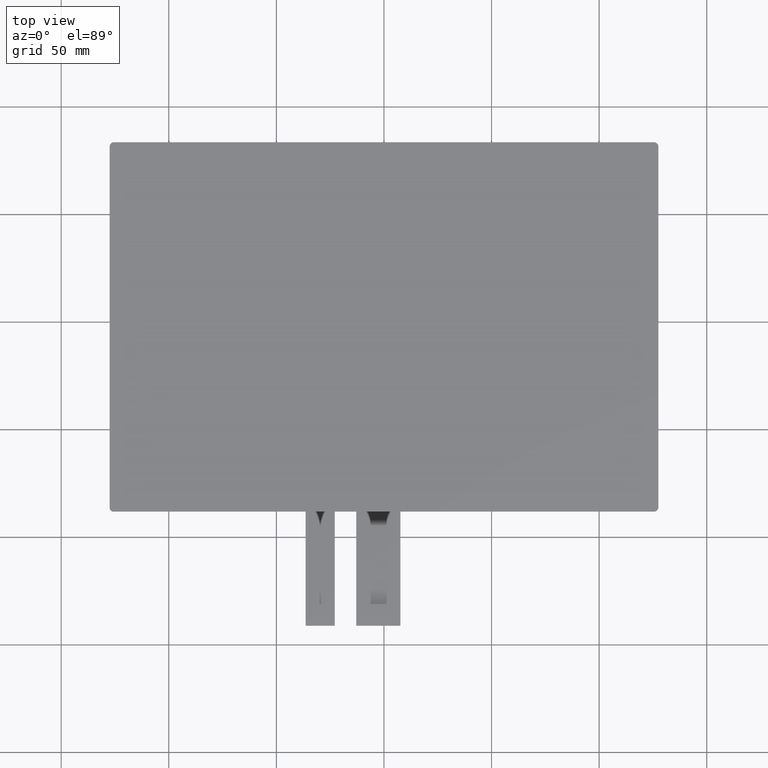
[diagram: clean part render]
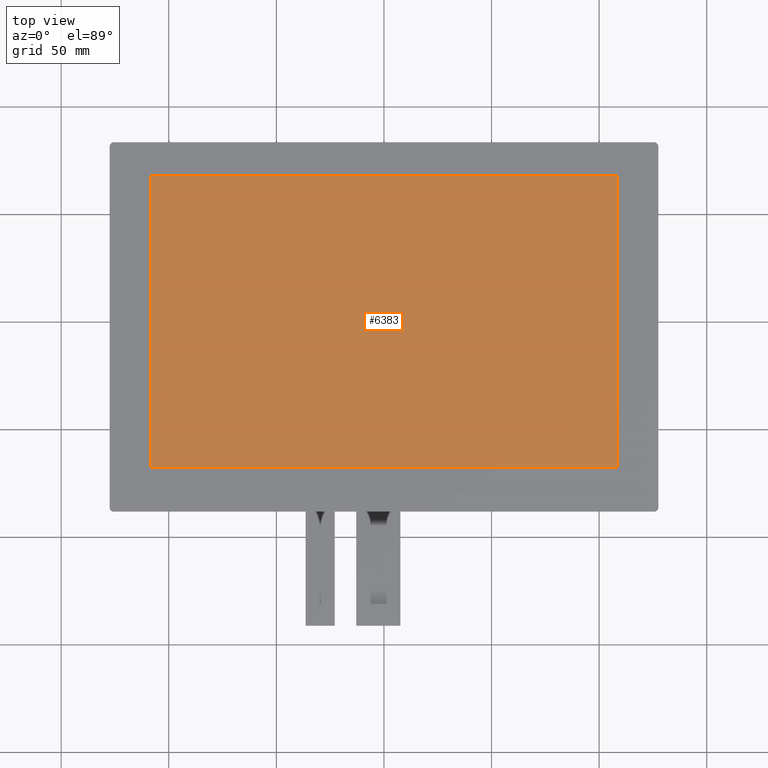
[diagram: same view with one face highlighted and labeled with its STEP entity id]
A machine part, top view. The second image highlights one B-rep face of the part: STEP entity #6383.
In plain terms, the highlighted planar face has unit normal (0, 0, 1).
Its self-contained STEP definition (entity closure, byte-faithful):
#339=FACE_OUTER_BOUND('',#649,.T.);
#649=EDGE_LOOP('',(#5715,#5716,#5717,#5718));
#667=LINE('',#8299,#1555);
#668=LINE('',#8301,#1556);
#669=LINE('',#8303,#1557);
#670=LINE('',#8304,#1558);
#1555=VECTOR('',#6757,10.);
#1556=VECTOR('',#6758,10.);
#1557=VECTOR('',#6759,10.);
#1558=VECTOR('',#6760,10.);
#2463=VERTEX_POINT('',#8297);
#2464=VERTEX_POINT('',#8298);
#2465=VERTEX_POINT('',#8300);
#2466=VERTEX_POINT('',#8302);
#3067=EDGE_CURVE('',#2463,#2464,#667,.T.);
#3068=EDGE_CURVE('',#2465,#2463,#668,.T.);
#3069=EDGE_CURVE('',#2466,#2465,#669,.T.);
#3070=EDGE_CURVE('',#2464,#2466,#670,.T.);
#5715=ORIENTED_EDGE('',*,*,#3067,.T.);
#5716=ORIENTED_EDGE('',*,*,#3070,.T.);
#5717=ORIENTED_EDGE('',*,*,#3069,.T.);
#5718=ORIENTED_EDGE('',*,*,#3068,.T.);
#6059=PLANE('',#6729);
#6383=ADVANCED_FACE('',(#339),#6059,.T.);
#6729=AXIS2_PLACEMENT_3D('',#10052,#8235,#8236);
#6757=DIRECTION('',(0.,1.,0.));
#6758=DIRECTION('',(1.,0.,0.));
#6759=DIRECTION('',(0.,-1.,0.));
#6760=DIRECTION('',(-1.,0.,0.));
#8235=DIRECTION('center_axis',(0.,0.,1.));
#8236=DIRECTION('ref_axis',(1.,0.,0.));
#8297=CARTESIAN_POINT('',(108.48,-67.8,1.8));
#8298=CARTESIAN_POINT('',(108.48,67.8,1.8));
#8299=CARTESIAN_POINT('',(108.48,-35.075,1.8));
#8300=CARTESIAN_POINT('',(-108.48,-67.8,1.8));
#8301=CARTESIAN_POINT('',(-54.23,-67.8,1.8));
#8302=CARTESIAN_POINT('',(-108.48,67.8,1.8));
#8303=CARTESIAN_POINT('',(-108.48,32.725,1.8));
#8304=CARTESIAN_POINT('',(54.25,67.8,1.8));
#10052=CARTESIAN_POINT('Origin',(0.0199999999999712,-2.34999999999998,1.8));